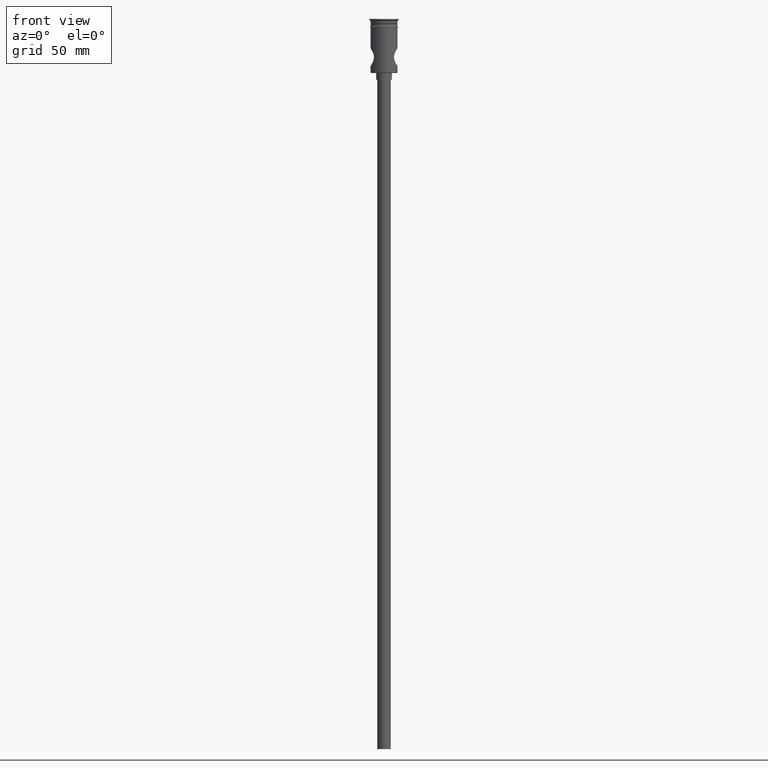
[diagram: clean part render]
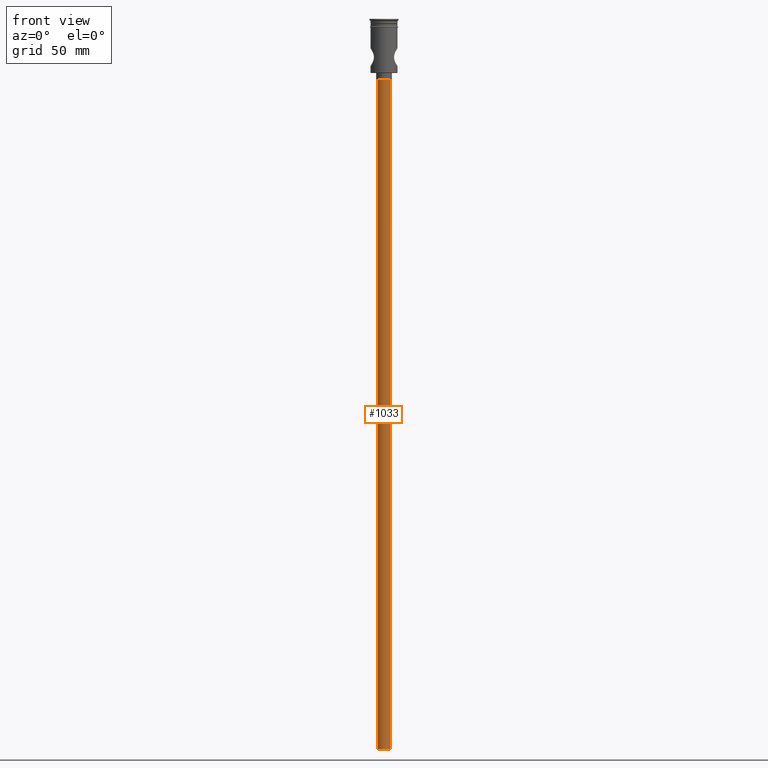
[diagram: same view with one face highlighted and labeled with its STEP entity id]
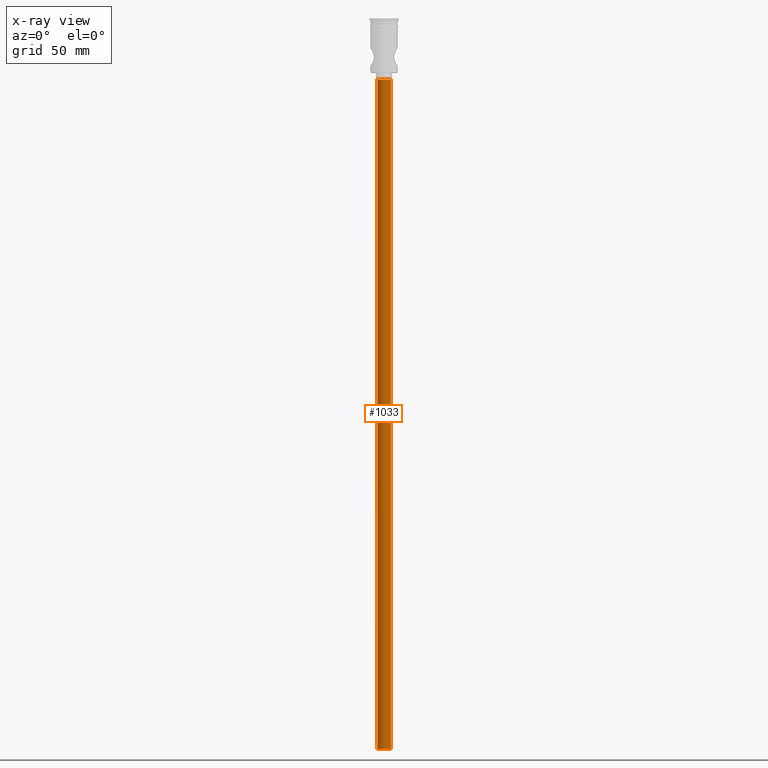
[diagram: x-ray of the same camera — body ghosted, the highlighted face saturated]
A machine part, front view. The second image highlights one B-rep face of the part: STEP entity #1033.
The next image is the same camera in x-ray: the body ghosted, the highlighted face saturated — about 0% of this face is hidden behind the body in this view.
In plain terms, the highlighted cylindrical surface (edge-blend (fillet) strip) has radius 3 mm, axis along (-0, -0, 1).
Its self-contained STEP definition (entity closure, byte-faithful):
#19 = VERTEX_POINT ( 'NONE', #1283 ) ;
#34 = CARTESIAN_POINT ( 'NONE',  ( 0.000000000000000000, 0.000000000000000000, -27.00000000000000000 ) ) ;
#42 = CARTESIAN_POINT ( 'NONE',  ( -3.000000000000000444, 3.673940397442060361E-16, -27.00000000000000000 ) ) ;
#70 = CARTESIAN_POINT ( 'NONE',  ( 0.000000000000000000, 0.000000000000000000, -324.0000000000000000 ) ) ;
#87 = AXIS2_PLACEMENT_3D ( 'NONE', #34, #376, #1280 ) ;
#111 = CYLINDRICAL_SURFACE ( 'NONE', #897, 3.000000000000000444 ) ;
#114 = DIRECTION ( 'NONE',  ( -0.000000000000000000, -0.000000000000000000, 1.000000000000000000 ) ) ;
#121 = CARTESIAN_POINT ( 'NONE',  ( 3.000000000000000444, 0.000000000000000000, -324.0000000000000000 ) ) ;
#137 = DIRECTION ( 'NONE',  ( -0.000000000000000000, -0.000000000000000000, 1.000000000000000000 ) ) ;
#202 = CARTESIAN_POINT ( 'NONE',  ( 3.000000000000000444, 0.000000000000000000, -27.00000000000000000 ) ) ;
#247 = EDGE_CURVE ( 'NONE', #341, #744, #480, .T. ) ;
#264 = EDGE_CURVE ( 'NONE', #19, #1260, #594, .T. ) ;
#289 = CARTESIAN_POINT ( 'NONE',  ( -3.000000000000000444, 3.673940397442060361E-16, -324.0000000000000000 ) ) ;
#315 = ORIENTED_EDGE ( 'NONE', *, *, #666, .T. ) ;
#336 = EDGE_LOOP ( 'NONE', ( #1261, #623, #1400, #315 ) ) ;
#341 = VERTEX_POINT ( 'NONE', #289 ) ;
#376 = DIRECTION ( 'NONE',  ( 0.000000000000000000, 0.000000000000000000, -1.000000000000000000 ) ) ;
#429 = DIRECTION ( 'NONE',  ( -1.000000000000000000, 0.000000000000000000, 0.000000000000000000 ) ) ;
#433 = EDGE_CURVE ( 'NONE', #19, #341, #561, .T. ) ;
#480 = LINE ( 'NONE', #1154, #489 ) ;
#489 = VECTOR ( 'NONE', #137, 1000.000000000000000 ) ;
#539 = CIRCLE ( 'NONE', #87, 3.000000000000000444 ) ;
#561 = CIRCLE ( 'NONE', #1126, 3.000000000000000444 ) ;
#594 = LINE ( 'NONE', #121, #1318 ) ;
#623 = ORIENTED_EDGE ( 'NONE', *, *, #433, .F. ) ;
#643 = DIRECTION ( 'NONE',  ( 0.000000000000000000, 0.000000000000000000, -1.000000000000000000 ) ) ;
#666 = EDGE_CURVE ( 'NONE', #1260, #744, #539, .T. ) ;
#701 = DIRECTION ( 'NONE',  ( 1.000000000000000000, 0.000000000000000000, 0.000000000000000000 ) ) ;
#744 = VERTEX_POINT ( 'NONE', #42 ) ;
#789 = FACE_OUTER_BOUND ( 'NONE', #336, .T. ) ;
#897 = AXIS2_PLACEMENT_3D ( 'NONE', #1135, #1029, #701 ) ;
#1029 = DIRECTION ( 'NONE',  ( -0.000000000000000000, -0.000000000000000000, 1.000000000000000000 ) ) ;
#1033 = ADVANCED_FACE ( 'NONE', ( #789 ), #111, .T. ) ;
#1126 = AXIS2_PLACEMENT_3D ( 'NONE', #70, #643, #429 ) ;
#1135 = CARTESIAN_POINT ( 'NONE',  ( 0.000000000000000000, 0.000000000000000000, -324.0000000000000000 ) ) ;
#1154 = CARTESIAN_POINT ( 'NONE',  ( -3.000000000000000444, 3.673940397442060361E-16, -324.0000000000000000 ) ) ;
#1260 = VERTEX_POINT ( 'NONE', #202 ) ;
#1261 = ORIENTED_EDGE ( 'NONE', *, *, #247, .F. ) ;
#1280 = DIRECTION ( 'NONE',  ( -1.000000000000000000, 0.000000000000000000, 0.000000000000000000 ) ) ;
#1283 = CARTESIAN_POINT ( 'NONE',  ( 3.000000000000000444, 0.000000000000000000, -324.0000000000000000 ) ) ;
#1318 = VECTOR ( 'NONE', #114, 1000.000000000000000 ) ;
#1400 = ORIENTED_EDGE ( 'NONE', *, *, #264, .T. ) ;